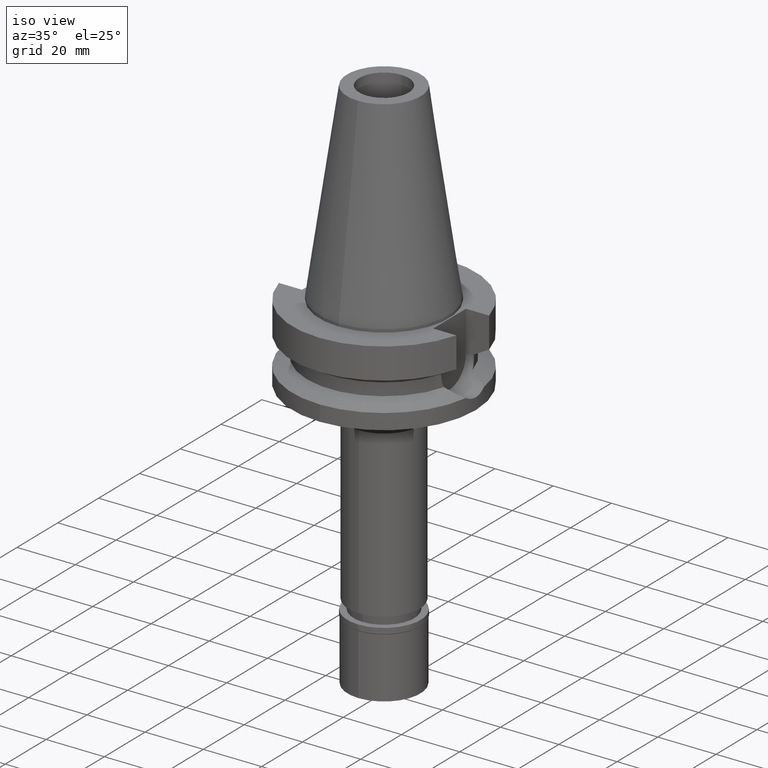
[diagram: clean part render]
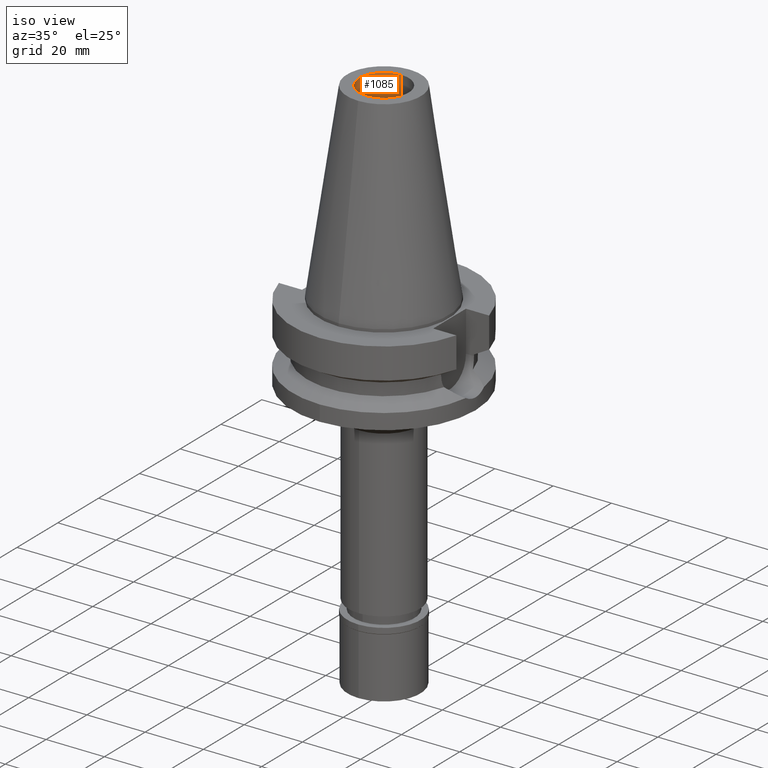
[diagram: same view with one face highlighted and labeled with its STEP entity id]
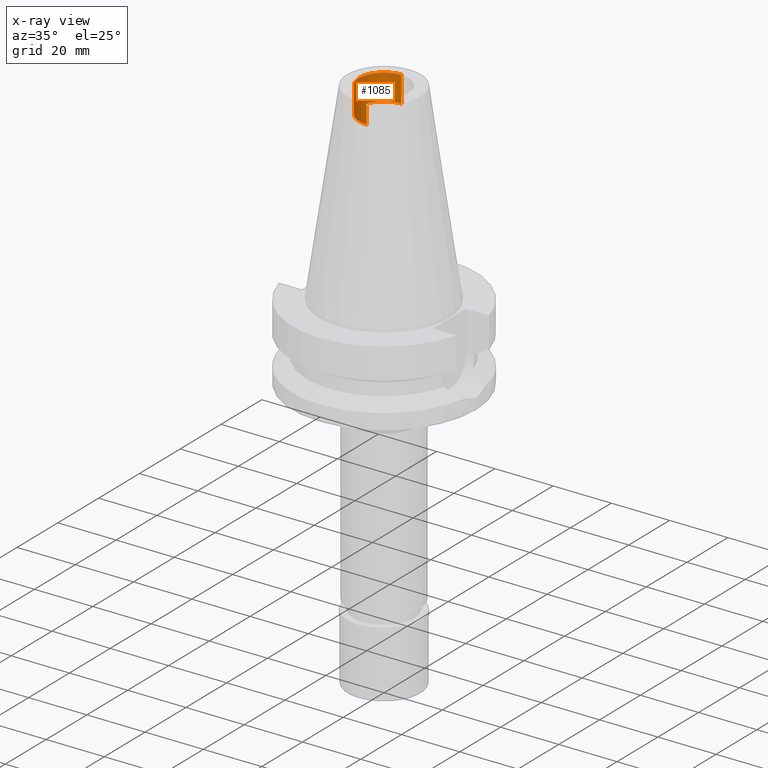
[diagram: x-ray of the same camera — body ghosted, the highlighted face saturated]
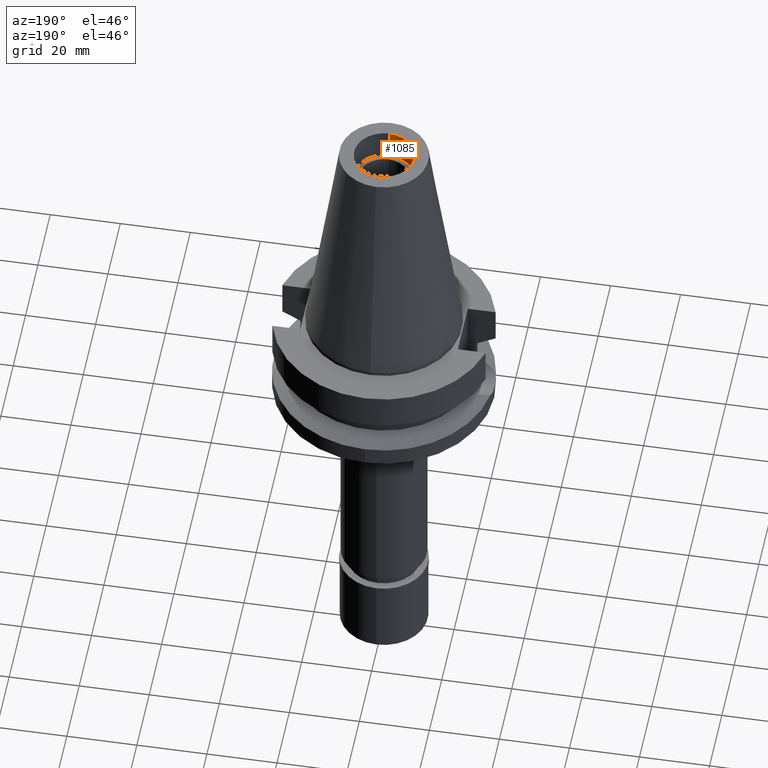
[diagram: same view with one face highlighted and labeled with its STEP entity id]
A machine part, iso view. The second image highlights one B-rep face of the part: STEP entity #1085.
The next image is the same camera in x-ray: the body ghosted, the highlighted face saturated — about 0% of this face is hidden behind the body in this view.
A second angle (auxiliary view) of the same face is appended — the face is thin or edge-on in the first view.
In plain terms, the highlighted cylindrical surface (edge-blend (fillet) strip) has radius 8.5 mm, axis along (0, 0, -1).
Its self-contained STEP definition (entity closure, byte-faithful):
#193 = ORIENTED_EDGE ( 'NONE', *, *, #736, .F. ) ;
#217 = DIRECTION ( 'NONE',  ( 0.0000000000000000000, 0.0000000000000000000, 1.000000000000000000 ) ) ;
#227 = LINE ( 'NONE', #1196, #2649 ) ;
#236 = CYLINDRICAL_SURFACE ( 'NONE', #601, 8.500000000000000000 ) ;
#311 = CARTESIAN_POINT ( 'NONE',  ( 0.0000000000000000000, 0.0000000000000000000, 56.39999999999999858 ) ) ;
#373 = EDGE_CURVE ( 'NONE', #635, #921, #880, .T. ) ;
#420 = VERTEX_POINT ( 'NONE', #1152 ) ;
#431 = FACE_OUTER_BOUND ( 'NONE', #1217, .T. ) ;
#458 = ORIENTED_EDGE ( 'NONE', *, *, #1741, .T. ) ;
#578 = DIRECTION ( 'NONE',  ( 0.0000000000000000000, 0.0000000000000000000, -1.000000000000000000 ) ) ;
#601 = AXIS2_PLACEMENT_3D ( 'NONE', #1396, #2421, #1158 ) ;
#635 = VERTEX_POINT ( 'NONE', #1502 ) ;
#647 = CARTESIAN_POINT ( 'NONE',  ( 0.0000000000000000000, -8.500000000000000000, 65.40000000000000568 ) ) ;
#699 = DIRECTION ( 'NONE',  ( 0.0000000000000000000, 0.0000000000000000000, 1.000000000000000000 ) ) ;
#736 = EDGE_CURVE ( 'NONE', #420, #881, #227, .T. ) ;
#801 = CARTESIAN_POINT ( 'NONE',  ( 0.0000000000000000000, 0.0000000000000000000, 65.40000000000000568 ) ) ;
#880 = LINE ( 'NONE', #3063, #2399 ) ;
#881 = VERTEX_POINT ( 'NONE', #647 ) ;
#915 = AXIS2_PLACEMENT_3D ( 'NONE', #311, #578, #1547 ) ;
#921 = VERTEX_POINT ( 'NONE', #2113 ) ;
#1085 = ADVANCED_FACE ( 'NONE', ( #431 ), #236, .F. ) ;
#1152 = CARTESIAN_POINT ( 'NONE',  ( 0.0000000000000000000, -8.500000000000000000, 56.39999999999999858 ) ) ;
#1158 = DIRECTION ( 'NONE',  ( 0.0000000000000000000, -1.000000000000000000, 0.0000000000000000000 ) ) ;
#1196 = CARTESIAN_POINT ( 'NONE',  ( 0.0000000000000000000, -8.500000000000000000, 56.39999999999999858 ) ) ;
#1217 = EDGE_LOOP ( 'NONE', ( #2761, #193, #458, #1864 ) ) ;
#1281 = DIRECTION ( 'NONE',  ( 0.0000000000000000000, 0.0000000000000000000, 1.000000000000000000 ) ) ;
#1371 = CIRCLE ( 'NONE', #2540, 8.500000000000000000 ) ;
#1396 = CARTESIAN_POINT ( 'NONE',  ( 0.0000000000000000000, 0.0000000000000000000, 0.0000000000000000000 ) ) ;
#1502 = CARTESIAN_POINT ( 'NONE',  ( 0.0000000000000000000, 8.500000000000000000, 56.39999999999999858 ) ) ;
#1547 = DIRECTION ( 'NONE',  ( 0.0000000000000000000, -1.000000000000000000, 0.0000000000000000000 ) ) ;
#1722 = EDGE_CURVE ( 'NONE', #921, #881, #1371, .T. ) ;
#1741 = EDGE_CURVE ( 'NONE', #420, #635, #2292, .T. ) ;
#1864 = ORIENTED_EDGE ( 'NONE', *, *, #373, .T. ) ;
#2113 = CARTESIAN_POINT ( 'NONE',  ( 0.0000000000000000000, 8.500000000000000000, 65.40000000000000568 ) ) ;
#2292 = CIRCLE ( 'NONE', #915, 8.500000000000000000 ) ;
#2399 = VECTOR ( 'NONE', #217, 1000.000000000000000 ) ;
#2421 = DIRECTION ( 'NONE',  ( 0.0000000000000000000, 0.0000000000000000000, -1.000000000000000000 ) ) ;
#2540 = AXIS2_PLACEMENT_3D ( 'NONE', #801, #1281, #2770 ) ;
#2649 = VECTOR ( 'NONE', #699, 1000.000000000000000 ) ;
#2761 = ORIENTED_EDGE ( 'NONE', *, *, #1722, .T. ) ;
#2770 = DIRECTION ( 'NONE',  ( 0.0000000000000000000, 1.000000000000000000, 0.0000000000000000000 ) ) ;
#3063 = CARTESIAN_POINT ( 'NONE',  ( 0.0000000000000000000, 8.500000000000000000, 56.39999999999999858 ) ) ;